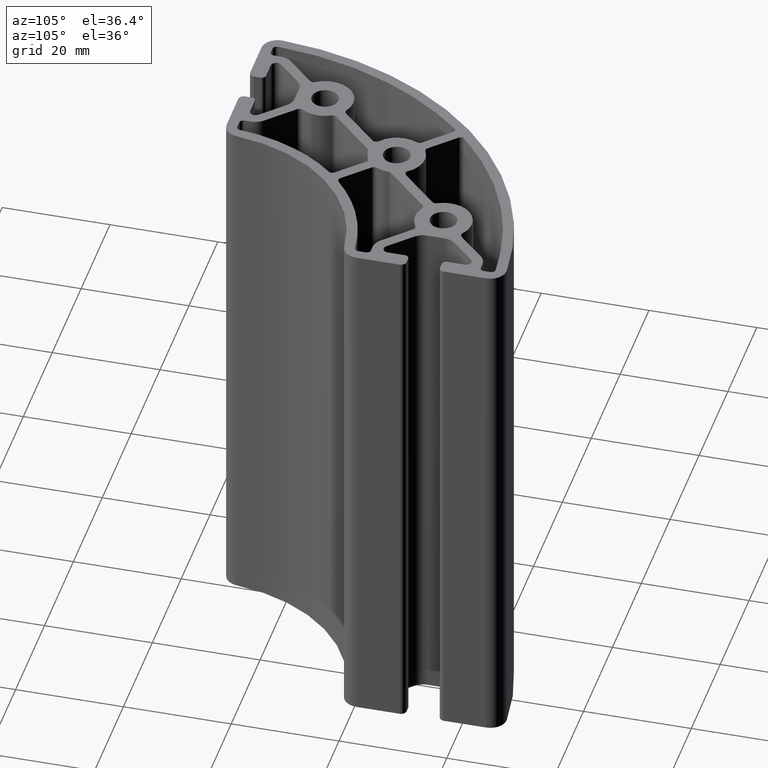
[diagram: clean part render]
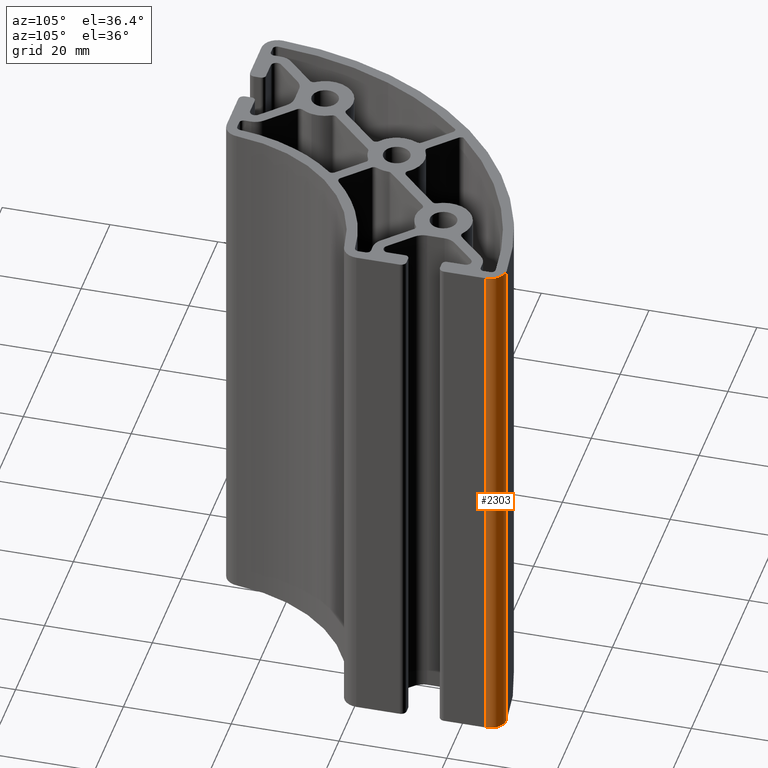
[diagram: same view with one face highlighted and labeled with its STEP entity id]
A machine part, auxiliary view. The second image highlights one B-rep face of the part: STEP entity #2303.
In plain terms, the highlighted cylindrical surface (edge-blend (fillet) strip) has radius 3 mm, axis along (0, 0, 1).
Its self-contained STEP definition (entity closure, byte-faithful):
#170=CIRCLE('',#2562,3.0000300003);
#171=CIRCLE('',#2563,3.0000300003);
#257=CYLINDRICAL_SURFACE('',#2561,3.0000300003);
#365=FACE_OUTER_BOUND('',#486,.T.);
#486=EDGE_LOOP('',(#1864,#1865,#1866,#1867));
#675=LINE('',#3931,#864);
#676=LINE('',#3937,#865);
#864=VECTOR('',#3230,100.);
#865=VECTOR('',#3237,100.);
#1095=VERTEX_POINT('',#3927);
#1096=VERTEX_POINT('',#3929);
#1097=VERTEX_POINT('',#3933);
#1098=VERTEX_POINT('',#3935);
#1423=EDGE_CURVE('',#1095,#1096,#675,.T.);
#1424=EDGE_CURVE('',#1097,#1095,#170,.T.);
#1425=EDGE_CURVE('',#1098,#1096,#171,.T.);
#1426=EDGE_CURVE('',#1097,#1098,#676,.T.);
#1864=ORIENTED_EDGE('',*,*,#1424,.T.);
#1865=ORIENTED_EDGE('',*,*,#1423,.T.);
#1866=ORIENTED_EDGE('',*,*,#1425,.F.);
#1867=ORIENTED_EDGE('',*,*,#1426,.F.);
#2303=ADVANCED_FACE('',(#365),#257,.T.);
#2561=AXIS2_PLACEMENT_3D('',#3932,#3231,#3232);
#2562=AXIS2_PLACEMENT_3D('',#3934,#3233,#3234);
#2563=AXIS2_PLACEMENT_3D('',#3936,#3235,#3236);
#3230=DIRECTION('',(0.,0.,1.));
#3231=DIRECTION('center_axis',(0.,0.,1.));
#3232=DIRECTION('ref_axis',(1.,0.,0.));
#3233=DIRECTION('center_axis',(0.,0.,1.));
#3234=DIRECTION('ref_axis',(1.,0.,0.));
#3235=DIRECTION('center_axis',(0.,0.,1.));
#3236=DIRECTION('ref_axis',(1.,0.,0.));
#3237=DIRECTION('',(0.,0.,1.));
#3927=CARTESIAN_POINT('',(28.660948200095,28.0973156610704,0.));
#3929=CARTESIAN_POINT('',(28.660948200095,28.0973156610704,100.));
#3931=CARTESIAN_POINT('',(28.660948200095,28.0973156610704,0.));
#3932=CARTESIAN_POINT('Origin',(28.8188446284479,25.1014437144389,0.));
#3933=CARTESIAN_POINT('',(31.8188746287481,25.1014437144389,0.));
#3934=CARTESIAN_POINT('Origin',(28.8188446284479,25.1014437144389,0.));
#3935=CARTESIAN_POINT('',(31.8188746287481,25.1014437144389,100.));
#3936=CARTESIAN_POINT('Origin',(28.8188446284479,25.1014437144389,100.));
#3937=CARTESIAN_POINT('',(31.8188746287481,25.1014437144389,0.));